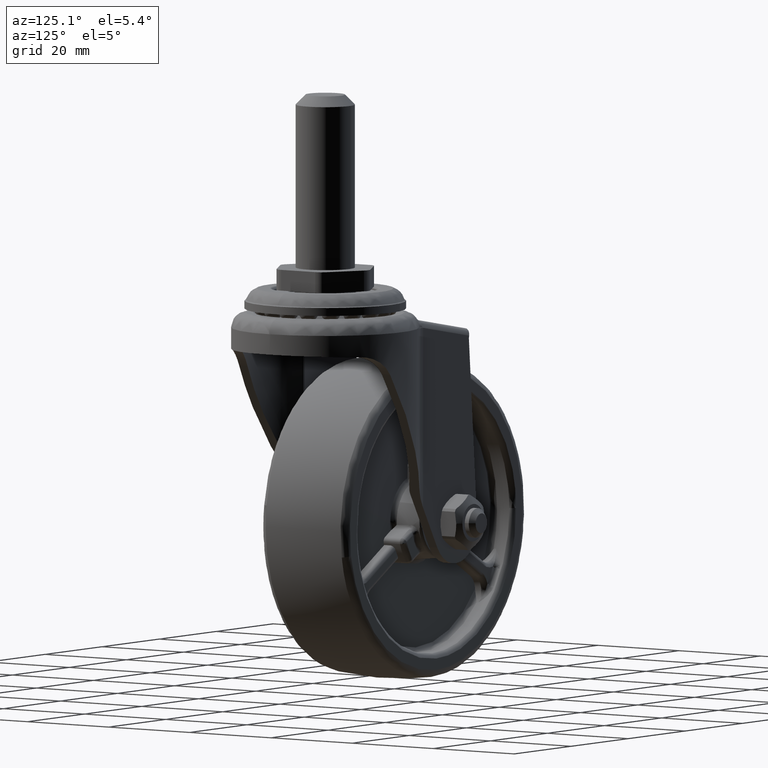
[diagram: clean part render]
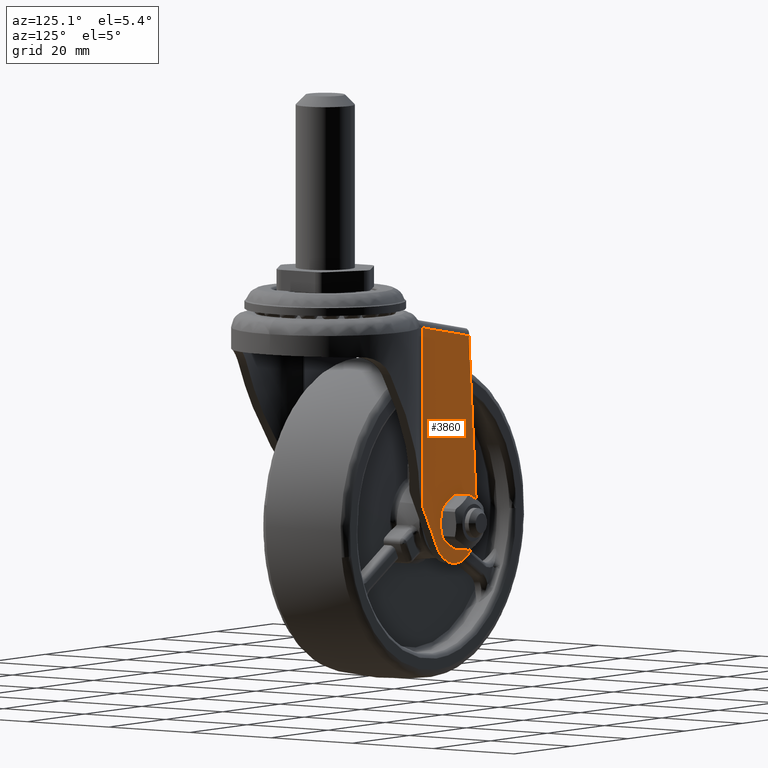
[diagram: same view with one face highlighted and labeled with its STEP entity id]
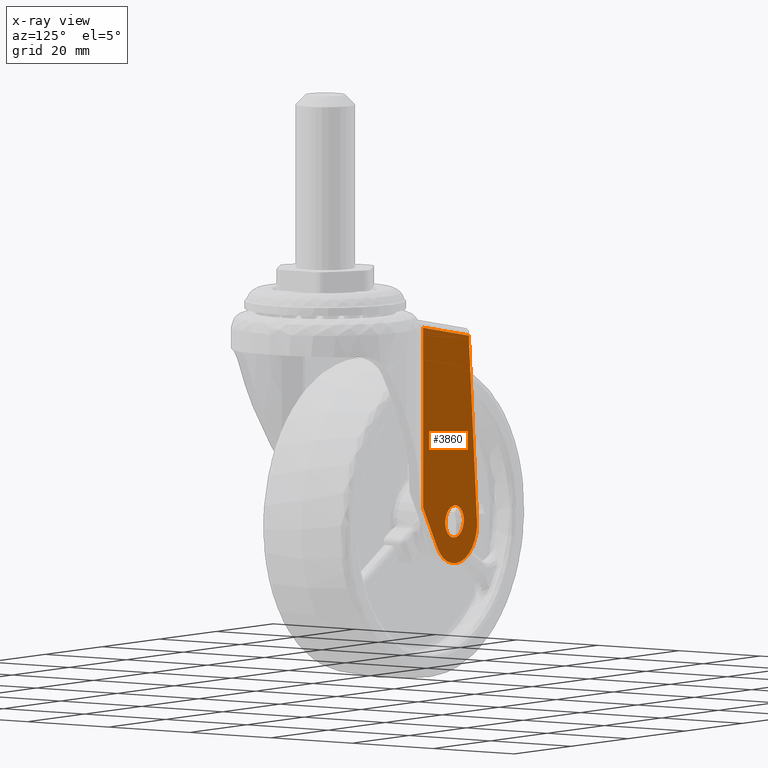
[diagram: x-ray of the same camera — body ghosted, the highlighted face saturated]
A machine part, auxiliary view. The second image highlights one B-rep face of the part: STEP entity #3860.
The next image is the same camera in x-ray: the body ghosted, the highlighted face saturated — about 0% of this face is hidden behind the body in this view.
In plain terms, the highlighted face is a freeform B-spline surface patch.
Its self-contained STEP definition (entity closure, byte-faithful):
#1508=CARTESIAN_POINT('',(-3.239981334591843,14.989471000000020,-0.254992061634201));
#1509=VERTEX_POINT('',#1508);
#1515=CARTESIAN_POINT('',(0.0,14.989471000000020,3.250000000000000));
#1516=VERTEX_POINT('',#1515);
#1517=CARTESIAN_POINT('',(-3.239981334591844,14.989471000000018,-0.254992061634201));
#1518=CARTESIAN_POINT('',(-3.250000000000000,14.989471000000021,-0.127692848035482));
#1519=CARTESIAN_POINT('',(-3.250000000000000,14.989471000000020,0.0));
#1520=CARTESIAN_POINT('',(-3.250000000000000,14.989471000000016,3.250000000000000));
#1521=CARTESIAN_POINT('',(0.0,14.989471000000020,3.250000000000000));
#1529=(BOUNDED_CURVE()B_SPLINE_CURVE(2,(#1517,#1518,#1519,#1520,#1521),.UNSPECIFIED.,.F.,.U.)B_SPLINE_CURVE_WITH_KNOTS((3,2,3),(0.736331300605323,0.750000000000000,1.0),.UNSPECIFIED.)CURVE()GEOMETRIC_REPRESENTATION_ITEM()RATIONAL_B_SPLINE_CURVE((0.969723356114542,0.983986122549198,1.0,0.707106781186547,1.0))REPRESENTATION_ITEM(''));
#1530=EDGE_CURVE('',#1509,#1516,#1529,.T.);
#1532=CARTESIAN_POINT('',(3.239981334591843,14.989471000000020,0.254992061634201));
#1533=VERTEX_POINT('',#1532);
#1534=CARTESIAN_POINT('',(0.0,14.989471000000020,3.250000000000000));
#1535=CARTESIAN_POINT('',(3.004269097406717,14.989471000000025,3.250000000000001));
#1536=CARTESIAN_POINT('',(3.239981334591843,14.989471000000018,0.254992061634201));
#1544=(BOUNDED_CURVE()B_SPLINE_CURVE(2,(#1534,#1535,#1536),.UNSPECIFIED.,.F.,.U.)B_SPLINE_CURVE_WITH_KNOTS((3,3),(0.0,0.236331300605323),.UNSPECIFIED.)CURVE()GEOMETRIC_REPRESENTATION_ITEM()RATIONAL_B_SPLINE_CURVE((1.0,0.723120658637350,0.969723356114542))REPRESENTATION_ITEM(''));
#1545=EDGE_CURVE('',#1516,#1533,#1544,.T.);
#1591=CARTESIAN_POINT('',(0.0,14.989471000000020,-3.250000000000000));
#1592=VERTEX_POINT('',#1591);
#1593=CARTESIAN_POINT('',(3.239981334591843,14.989471000000018,0.254992061634201));
#1594=CARTESIAN_POINT('',(3.250000000000000,14.989471000000021,0.127692848035482));
#1595=CARTESIAN_POINT('',(3.250000000000000,14.989471000000020,0.0));
#1596=CARTESIAN_POINT('',(3.250000000000000,14.989471000000016,-3.250000000000000));
#1597=CARTESIAN_POINT('',(0.0,14.989471000000020,-3.250000000000000));
#1605=(BOUNDED_CURVE()B_SPLINE_CURVE(2,(#1593,#1594,#1595,#1596,#1597),.UNSPECIFIED.,.F.,.U.)B_SPLINE_CURVE_WITH_KNOTS((3,2,3),(0.236331300605323,0.250000000000000,0.500000000000000),.UNSPECIFIED.)CURVE()GEOMETRIC_REPRESENTATION_ITEM()RATIONAL_B_SPLINE_CURVE((0.969723356114542,0.983986122549198,1.0,0.707106781186547,1.0))REPRESENTATION_ITEM(''));
#1606=EDGE_CURVE('',#1533,#1592,#1605,.T.);
#1608=CARTESIAN_POINT('',(0.0,14.989471000000020,-3.250000000000000));
#1609=CARTESIAN_POINT('',(-3.004269097406718,14.989471000000027,-3.250000000000000));
#1610=CARTESIAN_POINT('',(-3.239981334591844,14.989471000000018,-0.254992061634201));
#1618=(BOUNDED_CURVE()B_SPLINE_CURVE(2,(#1608,#1609,#1610),.UNSPECIFIED.,.F.,.U.)B_SPLINE_CURVE_WITH_KNOTS((3,3),(0.500000000000000,0.736331300605323),.UNSPECIFIED.)CURVE()GEOMETRIC_REPRESENTATION_ITEM()RATIONAL_B_SPLINE_CURVE((1.0,0.723120658637350,0.969723356114542))REPRESENTATION_ITEM(''));
#1619=EDGE_CURVE('',#1592,#1509,#1618,.T.);
#3004=CARTESIAN_POINT('',(-5.031762965749939,14.989473845400401,36.729751717695351));
#3005=VERTEX_POINT('',#3004);
#3013=CARTESIAN_POINT('',(-7.878093303800609,14.989471000000020,-0.427155822215347));
#3014=VERTEX_POINT('',#3013);
#3015=CARTESIAN_POINT('',(-7.878093303800609,14.989471000000020,-0.427155822215347));
#3016=CARTESIAN_POINT('',(-5.031762965749939,14.989473845400401,36.729751717695351));
#3017=QUASI_UNIFORM_CURVE('',1,(#3015,#3016),.UNSPECIFIED.,.F.,.U.);
#3018=EDGE_CURVE('',#3014,#3005,#3017,.T.);
#3120=CARTESIAN_POINT('',(6.063617999999909,14.989471000000020,-4.804157000000120));
#3121=VERTEX_POINT('',#3120);
#3127=CARTESIAN_POINT('',(11.023097783363021,14.989471000000000,3.622461012426025));
#3128=VERTEX_POINT('',#3127);
#3129=CARTESIAN_POINT('',(11.023097783363021,14.989471000000000,3.622461012426025));
#3130=CARTESIAN_POINT('',(6.063617999999909,14.989471000000020,-4.804157000000120));
#3131=QUASI_UNIFORM_CURVE('',1,(#3129,#3130),.UNSPECIFIED.,.F.,.U.);
#3132=EDGE_CURVE('',#3128,#3121,#3131,.T.);
#3270=CARTESIAN_POINT('',(6.063617999999909,14.989471000000020,-4.804157000000120));
#3271=CARTESIAN_POINT('',(5.757713650267226,14.989471000000041,-5.324184324028661));
#3272=CARTESIAN_POINT('',(5.179907315604541,14.989470999999980,-6.079773442068064));
#3273=CARTESIAN_POINT('',(4.199638428741255,14.989471000000041,-6.955736406767128));
#3274=CARTESIAN_POINT('',(3.258382236963662,14.989471000000060,-7.582784462163337));
#3275=CARTESIAN_POINT('',(1.966502492127186,14.989470999999870,-8.175857070272956));
#3276=CARTESIAN_POINT('',(0.315261278311722,14.989471000000410,-8.545947635718294));
#3277=CARTESIAN_POINT('',(-1.455309896498990,14.989470999999931,-8.490202320970127));
#3278=CARTESIAN_POINT('',(-2.959541788229326,14.989471000000041,-8.094787264426842));
#3279=CARTESIAN_POINT('',(-4.197636874401536,14.989470999999940,-7.511000279077361));
#3280=CARTESIAN_POINT('',(-5.123418084683865,14.989470999999719,-6.858777743870975));
#3281=CARTESIAN_POINT('',(-5.983958146840214,14.989471000000350,-6.048386614238614));
#3282=CARTESIAN_POINT('',(-6.816989041348411,14.989470999999810,-4.993944797475122));
#3283=CARTESIAN_POINT('',(-7.418823021719975,14.989471000000020,-3.758787132482812));
#3284=CARTESIAN_POINT('',(-7.861209174361738,14.989471000000011,-2.190905640907322));
#3285=CARTESIAN_POINT('',(-7.934542816125563,14.989471000000069,-1.159505367946278));
#3286=CARTESIAN_POINT('',(-7.878093303800609,14.989471000000020,-0.427155822215347));
#3287=B_SPLINE_CURVE_WITH_KNOTS('',3,(#3270,#3271,#3272,#3273,#3274,#3275,#3276,#3277,#3278,#3279,#3280,#3281,#3282,#3283,#3284,#3285,#3286),.UNSPECIFIED.,.F.,.U.,(4,1,1,1,1,1,1,1,1,1,1,1,1,1,4),(0.000000322577268,1.809952687718347,2.832994236228473,3.934701117082398,5.193833218964524,7.082531563686697,8.971212315152320,10.466289128524300,11.725402479664799,13.063262334814601,13.850209876420440,15.266712709773550,17.076693692566462,17.942357231152709,20.145761605002789),.UNSPECIFIED.);
#3288=EDGE_CURVE('',#3121,#3014,#3287,.T.);
#3825=CARTESIAN_POINT('',(-8.844764457750699,14.989471000000000,-10.921039469964310));
#3826=CARTESIAN_POINT('',(-8.844764457750699,14.989471000000000,42.494963891199419));
#3827=CARTESIAN_POINT('',(11.973039270644190,14.989471000000000,-10.921039469964310));
#3828=CARTESIAN_POINT('',(11.973039270644190,14.989471000000000,42.494963891199419));
#3829=B_SPLINE_SURFACE_WITH_KNOTS('',1,1,((#3825,#3827),(#3826,#3828)),.UNSPECIFIED.,.F.,.F.,.U.,(2,2),(2,2),(0.0,53.416003361163732),(0.0,20.817803728394889),.UNSPECIFIED.);
#3830=CARTESIAN_POINT('',(-5.118587997674790,14.989471000000000,37.222155320005299));
#3831=VERTEX_POINT('',#3830);
#3832=CARTESIAN_POINT('',(11.027635331871281,14.989471000000000,40.069170054098898));
#3833=VERTEX_POINT('',#3832);
#3834=CARTESIAN_POINT('',(-5.118587997674790,14.989471000000000,37.222155320005299));
#3835=CARTESIAN_POINT('',(11.027635331871281,14.989471000000000,40.069170054098898));
#3836=QUASI_UNIFORM_CURVE('',1,(#3834,#3835),.UNSPECIFIED.,.F.,.U.);
#3837=EDGE_CURVE('',#3831,#3833,#3836,.T.);
#3838=ORIENTED_EDGE('',*,*,#3837,.T.);
#3839=CARTESIAN_POINT('',(11.027635331871281,14.989471000000000,40.069170054098898));
#3840=CARTESIAN_POINT('',(11.023097783362990,14.989471000000000,3.622461012426026));
#3841=QUASI_UNIFORM_CURVE('',1,(#3839,#3840),.UNSPECIFIED.,.F.,.U.);
#3842=EDGE_CURVE('',#3833,#3128,#3841,.T.);
#3843=ORIENTED_EDGE('',*,*,#3842,.T.);
#3844=ORIENTED_EDGE('',*,*,#3132,.T.);
#3845=ORIENTED_EDGE('',*,*,#3288,.T.);
#3846=ORIENTED_EDGE('',*,*,#3018,.T.);
#3847=CARTESIAN_POINT('',(-5.118587997674790,14.989471000000000,37.222155320005299));
#3848=CARTESIAN_POINT('',(-5.031762965749939,14.989473845400401,36.729751717695351));
#3849=QUASI_UNIFORM_CURVE('',1,(#3847,#3848),.UNSPECIFIED.,.F.,.U.);
#3850=EDGE_CURVE('',#3831,#3005,#3849,.T.);
#3851=ORIENTED_EDGE('',*,*,#3850,.F.);
#3852=EDGE_LOOP('',(#3838,#3843,#3844,#3845,#3846,#3851));
#3853=FACE_OUTER_BOUND('',#3852,.T.);
#3854=ORIENTED_EDGE('',*,*,#1619,.F.);
#3855=ORIENTED_EDGE('',*,*,#1606,.F.);
#3856=ORIENTED_EDGE('',*,*,#1545,.F.);
#3857=ORIENTED_EDGE('',*,*,#1530,.F.);
#3858=EDGE_LOOP('',(#3854,#3855,#3856,#3857));
#3859=FACE_BOUND('',#3858,.T.);
#3860=ADVANCED_FACE('',(#3853,#3859),#3829,.T.);